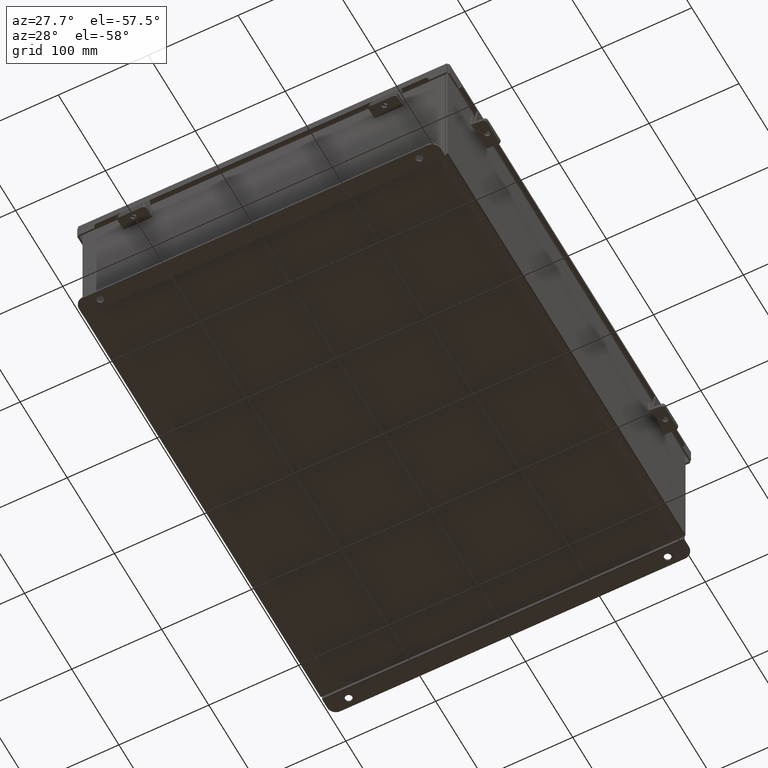
[diagram: clean part render]
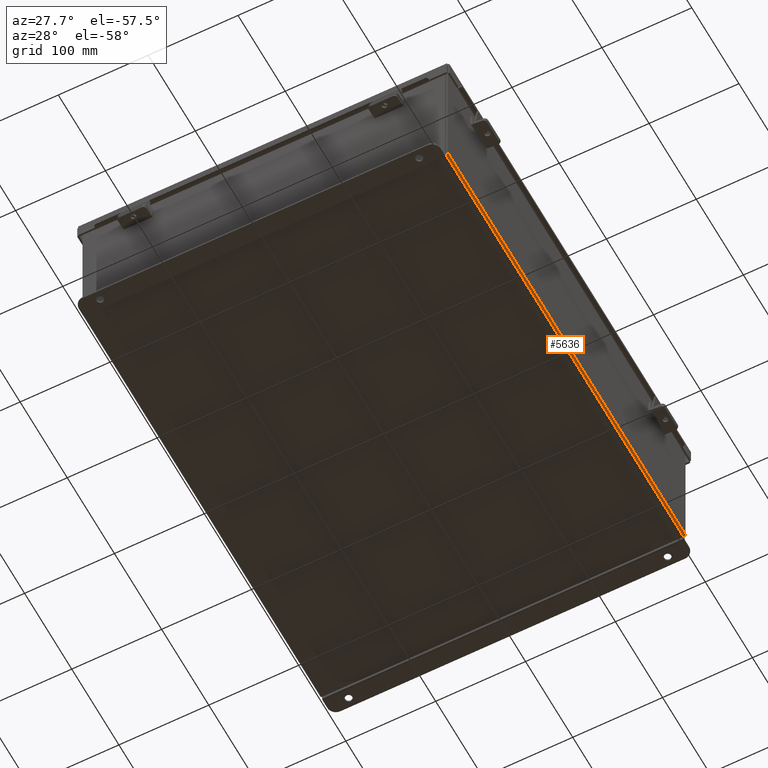
[diagram: same view with one face highlighted and labeled with its STEP entity id]
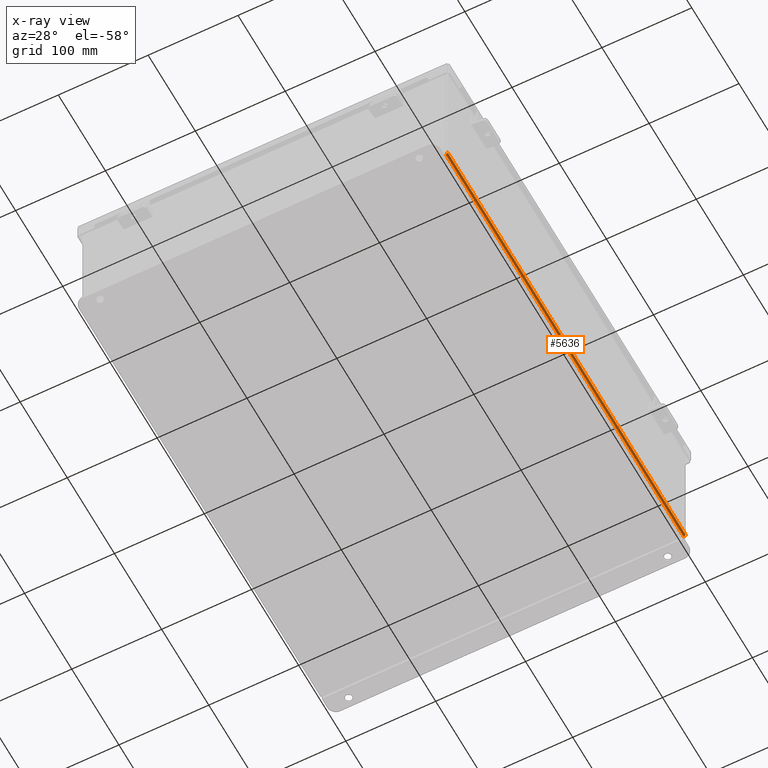
[diagram: x-ray of the same camera — body ghosted, the highlighted face saturated]
A machine part, auxiliary view. The second image highlights one B-rep face of the part: STEP entity #5636.
The next image is the same camera in x-ray: the body ghosted, the highlighted face saturated — about 0% of this face is hidden behind the body in this view.
In plain terms, the highlighted cylindrical surface (edge-blend (fillet) strip) has radius 2.2276 mm, axis along (0, 1, 0).
Its self-contained STEP definition (entity closure, byte-faithful):
#517 = DIRECTION ( 'NONE',  ( 1.000000000000000000, 0.0000000000000000000, -3.553037762569317100E-015 ) ) ;
#1201 = CARTESIAN_POINT ( 'NONE',  ( 7.912300000000002800, -9.925300000000000000, 0.01300000000000015000 ) ) ;
#1505 = CARTESIAN_POINT ( 'NONE',  ( 7.912300000000002800, -9.925300000000000000, -0.07470000000000000300 ) ) ;
#1658 = EDGE_CURVE ( 'NONE', #3902, #3763, #3233, .T. ) ;
#1867 = DIRECTION ( 'NONE',  ( 0.0000000000000000000, 0.0000000000000000000, 1.000000000000000000 ) ) ;
#2049 = VECTOR ( 'NONE', #4949, 39.37007874015748100 ) ;
#2447 = DIRECTION ( 'NONE',  ( 0.0000000000000000000, 1.000000000000000000, 0.0000000000000000000 ) ) ;
#2872 = CARTESIAN_POINT ( 'NONE',  ( 8.000000000000003600, -9.925300000000000000, 0.01299999999999984300 ) ) ;
#2942 = AXIS2_PLACEMENT_3D ( 'NONE', #5486, #2447, #517 ) ;
#3233 = LINE ( 'NONE', #6435, #5212 ) ;
#3458 = EDGE_CURVE ( 'NONE', #3902, #8433, #9614, .T. ) ;
#3719 = AXIS2_PLACEMENT_3D ( 'NONE', #8336, #7724, #1867 ) ;
#3763 = VERTEX_POINT ( 'NONE', #2872 ) ;
#3776 = DIRECTION ( 'NONE',  ( 0.0000000000000000000, 0.0000000000000000000, 1.000000000000000000 ) ) ;
#3902 = VERTEX_POINT ( 'NONE', #8609 ) ;
#4085 = EDGE_CURVE ( 'NONE', #5526, #3763, #5088, .T. ) ;
#4125 = ORIENTED_EDGE ( 'NONE', *, *, #3458, .F. ) ;
#4126 = DIRECTION ( 'NONE',  ( -0.0000000000000000000, -1.000000000000000000, -0.0000000000000000000 ) ) ;
#4597 = EDGE_CURVE ( 'NONE', #8433, #5526, #6334, .T. ) ;
#4949 = DIRECTION ( 'NONE',  ( -0.0000000000000000000, -1.000000000000000000, -0.0000000000000000000 ) ) ;
#5088 = CIRCLE ( 'NONE', #6191, 0.08770000000000009700 ) ;
#5212 = VECTOR ( 'NONE', #4126, 39.37007874015748100 ) ;
#5301 = ORIENTED_EDGE ( 'NONE', *, *, #4597, .F. ) ;
#5486 = CARTESIAN_POINT ( 'NONE',  ( 7.912300000000002800, 9.925299999999996500, 0.01300000000000015000 ) ) ;
#5526 = VERTEX_POINT ( 'NONE', #1505 ) ;
#5636 = ADVANCED_FACE ( 'NONE', ( #7183 ), #5994, .T. ) ;
#5994 = CYLINDRICAL_SURFACE ( 'NONE', #2942, 0.08770000000000026400 ) ;
#6191 = AXIS2_PLACEMENT_3D ( 'NONE', #1201, #8723, #3776 ) ;
#6334 = LINE ( 'NONE', #7375, #2049 ) ;
#6435 = CARTESIAN_POINT ( 'NONE',  ( 8.000000000000003600, -9.925300000000000000, 0.01299999999999984300 ) ) ;
#7183 = FACE_OUTER_BOUND ( 'NONE', #9707, .T. ) ;
#7375 = CARTESIAN_POINT ( 'NONE',  ( 7.912300000000002800, 9.925299999999996500, -0.07469999999999994700 ) ) ;
#7475 = CARTESIAN_POINT ( 'NONE',  ( 7.912300000000002800, 9.925299999999992900, -0.07469999999999994700 ) ) ;
#7724 = DIRECTION ( 'NONE',  ( 0.0000000000000000000, 1.000000000000000000, 0.0000000000000000000 ) ) ;
#8069 = ORIENTED_EDGE ( 'NONE', *, *, #1658, .T. ) ;
#8303 = ORIENTED_EDGE ( 'NONE', *, *, #4085, .F. ) ;
#8336 = CARTESIAN_POINT ( 'NONE',  ( 7.912300000000002800, 9.925299999999992900, 0.01300000000000015000 ) ) ;
#8433 = VERTEX_POINT ( 'NONE', #7475 ) ;
#8609 = CARTESIAN_POINT ( 'NONE',  ( 8.000000000000003600, 9.925299999999992900, 0.01299999999999984300 ) ) ;
#8723 = DIRECTION ( 'NONE',  ( -0.0000000000000000000, -1.000000000000000000, -0.0000000000000000000 ) ) ;
#9614 = CIRCLE ( 'NONE', #3719, 0.08770000000000009700 ) ;
#9707 = EDGE_LOOP ( 'NONE', ( #5301, #4125, #8069, #8303 ) ) ;